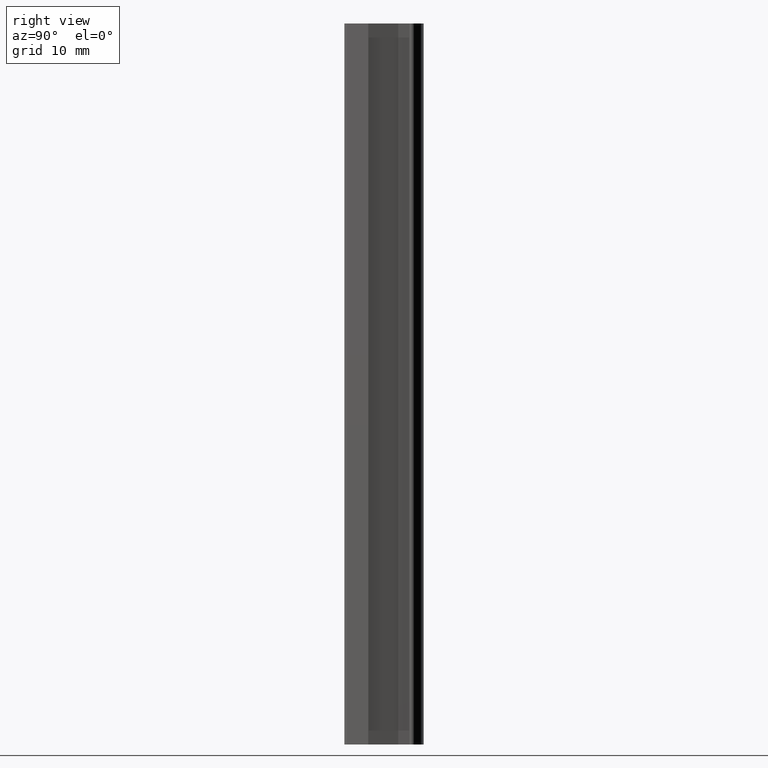
[diagram: clean part render]
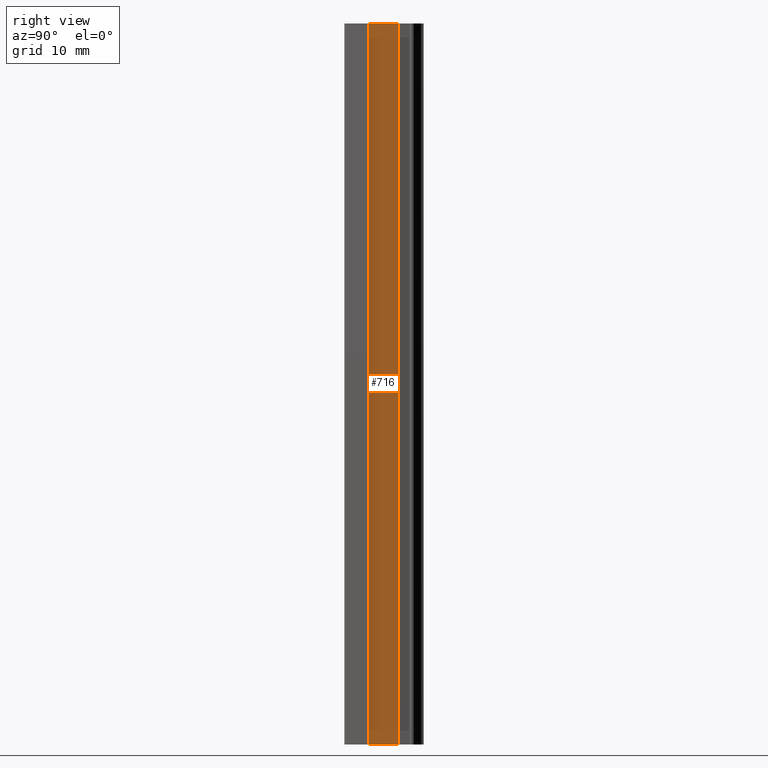
[diagram: same view with one face highlighted and labeled with its STEP entity id]
A machine part, right view. The second image highlights one B-rep face of the part: STEP entity #716.
In plain terms, the highlighted planar face has unit normal (0.9962, 0.0872, 0).
Its self-contained STEP definition (entity closure, byte-faithful):
#195=FACE_OUTER_BOUND('',#225,.T.);
#225=EDGE_LOOP('',(#599,#600,#601,#602));
#287=LINE('',#1155,#353);
#288=LINE('',#1158,#354);
#289=LINE('',#1160,#355);
#290=LINE('',#1161,#356);
#353=VECTOR('',#946,10.);
#354=VECTOR('',#949,10.);
#355=VECTOR('',#950,10.);
#356=VECTOR('',#951,10.);
#411=VERTEX_POINT('',#1151);
#412=VERTEX_POINT('',#1153);
#413=VERTEX_POINT('',#1157);
#414=VERTEX_POINT('',#1159);
#491=EDGE_CURVE('',#411,#412,#287,.T.);
#492=EDGE_CURVE('',#413,#411,#288,.T.);
#493=EDGE_CURVE('',#414,#412,#289,.T.);
#494=EDGE_CURVE('',#413,#414,#290,.T.);
#599=ORIENTED_EDGE('',*,*,#492,.T.);
#600=ORIENTED_EDGE('',*,*,#491,.T.);
#601=ORIENTED_EDGE('',*,*,#493,.F.);
#602=ORIENTED_EDGE('',*,*,#494,.F.);
#687=PLANE('',#782);
#716=ADVANCED_FACE('',(#195),#687,.T.);
#782=AXIS2_PLACEMENT_3D('',#1156,#947,#948);
#946=DIRECTION('',(0.,0.,1.));
#947=DIRECTION('center_axis',(0.996194698091746,0.0871557427476568,0.));
#948=DIRECTION('ref_axis',(-0.0871557427476568,0.996194698091746,0.));
#949=DIRECTION('',(-0.0871557427476568,0.996194698091746,0.));
#950=DIRECTION('',(-0.0871557427476568,0.996194698091746,0.));
#951=DIRECTION('',(0.,0.,1.));
#1151=CARTESIAN_POINT('',(4.80951587428952,1.95657375382642,0.));
#1153=CARTESIAN_POINT('',(4.80951587428952,1.95657375382642,100.));
#1155=CARTESIAN_POINT('',(4.80951587428952,1.95657375382642,0.));
#1156=CARTESIAN_POINT('Origin',(5.17480977092723,-2.21875459062215,0.));
#1157=CARTESIAN_POINT('',(5.17480977092723,-2.21875459062215,0.));
#1158=CARTESIAN_POINT('',(5.17480977092723,-2.21875459062215,0.));
#1159=CARTESIAN_POINT('',(5.17480977092723,-2.21875459062215,100.));
#1160=CARTESIAN_POINT('',(5.17480977092723,-2.21875459062215,100.));
#1161=CARTESIAN_POINT('',(5.17480977092723,-2.21875459062215,0.));